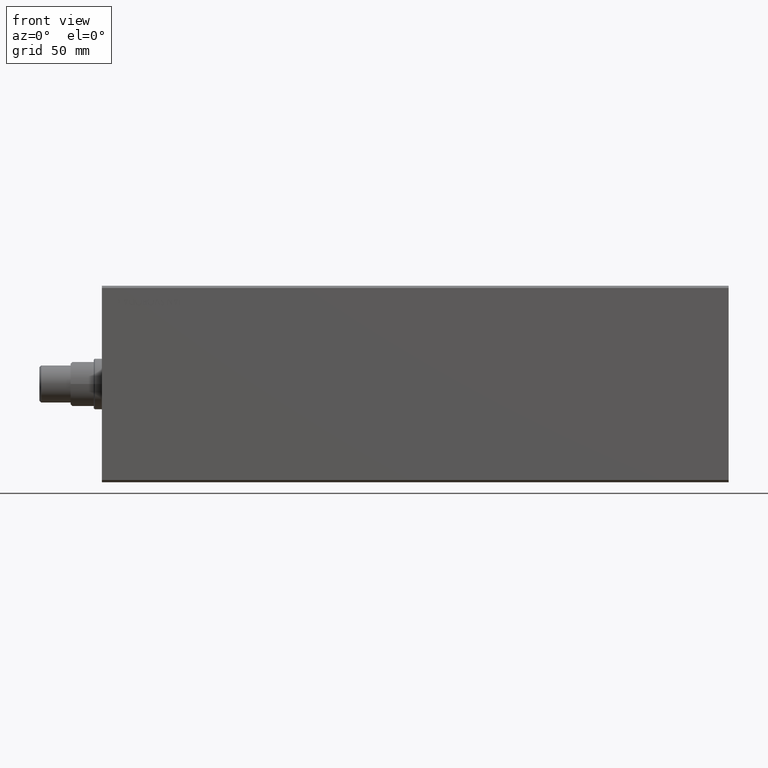
[diagram: clean part render]
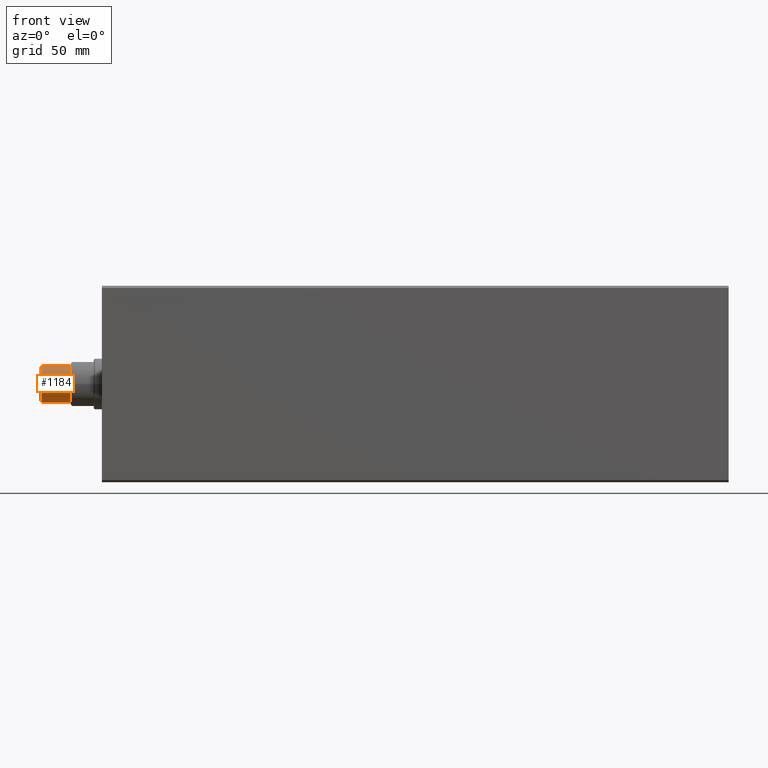
[diagram: same view with one face highlighted and labeled with its STEP entity id]
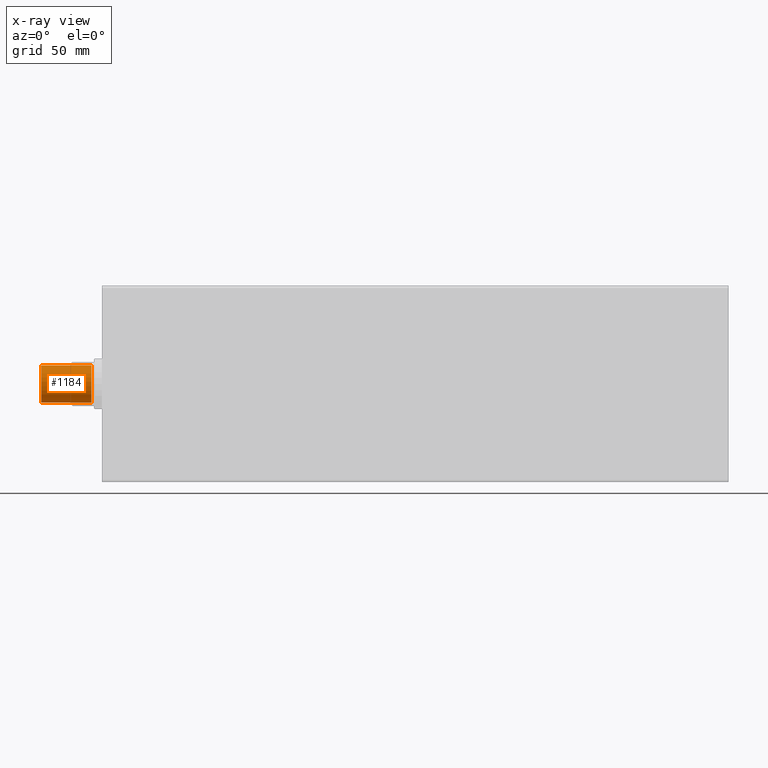
[diagram: x-ray of the same camera — body ghosted, the highlighted face saturated]
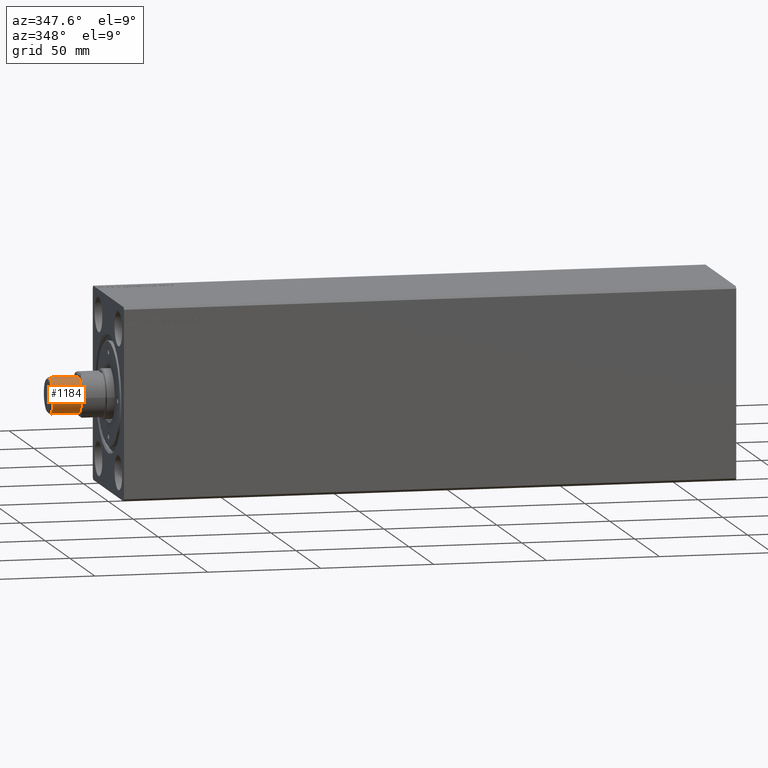
[diagram: same view with one face highlighted and labeled with its STEP entity id]
A machine part, front view. The second image highlights one B-rep face of the part: STEP entity #1184.
The next image is the same camera in x-ray: the body ghosted, the highlighted face saturated — about 0% of this face is hidden behind the body in this view.
A second angle (auxiliary view) of the same face is appended — the face is thin or edge-on in the first view.
In plain terms, the highlighted cylindrical surface (edge-blend (fillet) strip) has radius 8 mm, axis along (-1, -0, 0).
Its self-contained STEP definition (entity closure, byte-faithful):
#976 = AXIS2_PLACEMENT_3D ( 'NONE', #34742, #7303, #4578 ) ;
#1062 = CARTESIAN_POINT ( 'NONE',  ( 8.000000000000000000, 9.797174393178823685E-16, 0.8000000000000055955 ) ) ;
#1184 = ADVANCED_FACE ( 'NONE', ( #13546 ), #30648, .T. ) ;
#4463 = CARTESIAN_POINT ( 'NONE',  ( 0.000000000000000000, 0.000000000000000000, 22.50000000000000000 ) ) ;
#4578 = DIRECTION ( 'NONE',  ( 1.000000000000000000, 0.000000000000000000, 0.000000000000000000 ) ) ;
#6553 = LINE ( 'NONE', #20280, #8972 ) ;
#6809 = CARTESIAN_POINT ( 'NONE',  ( 8.000000000000000000, 9.797174393178823685E-16, 22.50000000000000000 ) ) ;
#7303 = DIRECTION ( 'NONE',  ( 0.000000000000000000, 0.000000000000000000, 1.000000000000000000 ) ) ;
#7458 = LINE ( 'NONE', #6809, #20865 ) ;
#7745 = AXIS2_PLACEMENT_3D ( 'NONE', #4463, #34466, #11432 ) ;
#8972 = VECTOR ( 'NONE', #19626, 1000.000000000000000 ) ;
#9404 = VERTEX_POINT ( 'NONE', #27087 ) ;
#11036 = EDGE_LOOP ( 'NONE', ( #18182, #20492, #43685, #18079 ) ) ;
#11432 = DIRECTION ( 'NONE',  ( -1.000000000000000000, 0.000000000000000000, 0.000000000000000000 ) ) ;
#12714 = AXIS2_PLACEMENT_3D ( 'NONE', #23908, #37623, #17150 ) ;
#13546 = FACE_OUTER_BOUND ( 'NONE', #11036, .T. ) ;
#14156 = CIRCLE ( 'NONE', #12714, 8.000000000000000000 ) ;
#15928 = CARTESIAN_POINT ( 'NONE',  ( -8.000000000000000000, 0.000000000000000000, 0.8000000000000055955 ) ) ;
#15969 = VERTEX_POINT ( 'NONE', #39195 ) ;
#16816 = CIRCLE ( 'NONE', #976, 8.000000000000000000 ) ;
#17150 = DIRECTION ( 'NONE',  ( 1.000000000000000000, 0.000000000000000000, 0.000000000000000000 ) ) ;
#18079 = ORIENTED_EDGE ( 'NONE', *, *, #41525, .T. ) ;
#18182 = ORIENTED_EDGE ( 'NONE', *, *, #19284, .F. ) ;
#19284 = EDGE_CURVE ( 'NONE', #15969, #20729, #7458, .T. ) ;
#19626 = DIRECTION ( 'NONE',  ( -0.000000000000000000, -0.000000000000000000, -1.000000000000000000 ) ) ;
#20280 = CARTESIAN_POINT ( 'NONE',  ( -8.000000000000000000, 0.000000000000000000, 22.50000000000000000 ) ) ;
#20492 = ORIENTED_EDGE ( 'NONE', *, *, #33295, .F. ) ;
#20729 = VERTEX_POINT ( 'NONE', #1062 ) ;
#20865 = VECTOR ( 'NONE', #24136, 1000.000000000000000 ) ;
#23908 = CARTESIAN_POINT ( 'NONE',  ( 0.000000000000000000, 0.000000000000000000, 0.8000000000000055955 ) ) ;
#24136 = DIRECTION ( 'NONE',  ( -0.000000000000000000, -0.000000000000000000, -1.000000000000000000 ) ) ;
#27087 = CARTESIAN_POINT ( 'NONE',  ( -8.000000000000000000, 0.000000000000000000, 22.50000000000000000 ) ) ;
#30648 = CYLINDRICAL_SURFACE ( 'NONE', #7745, 8.000000000000000000 ) ;
#33295 = EDGE_CURVE ( 'NONE', #9404, #15969, #16816, .T. ) ;
#34466 = DIRECTION ( 'NONE',  ( -0.000000000000000000, -0.000000000000000000, -1.000000000000000000 ) ) ;
#34742 = CARTESIAN_POINT ( 'NONE',  ( 0.000000000000000000, 0.000000000000000000, 22.50000000000000000 ) ) ;
#35432 = EDGE_CURVE ( 'NONE', #9404, #41412, #6553, .T. ) ;
#37623 = DIRECTION ( 'NONE',  ( -0.000000000000000000, -0.000000000000000000, 1.000000000000000000 ) ) ;
#39195 = CARTESIAN_POINT ( 'NONE',  ( 8.000000000000000000, 9.797174393178823685E-16, 22.50000000000000000 ) ) ;
#41412 = VERTEX_POINT ( 'NONE', #15928 ) ;
#41525 = EDGE_CURVE ( 'NONE', #41412, #20729, #14156, .T. ) ;
#43685 = ORIENTED_EDGE ( 'NONE', *, *, #35432, .T. ) ;